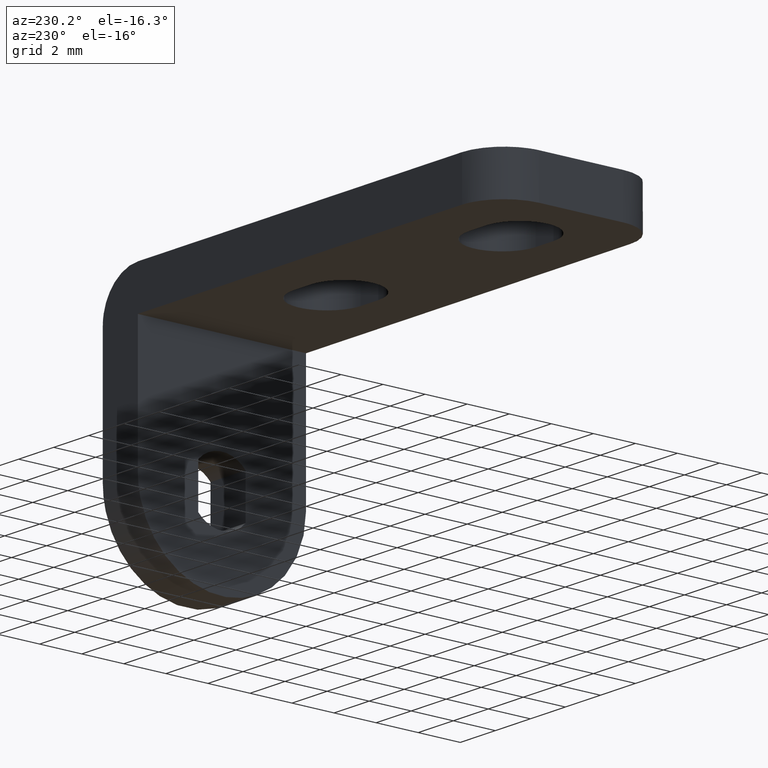
[diagram: clean part render]
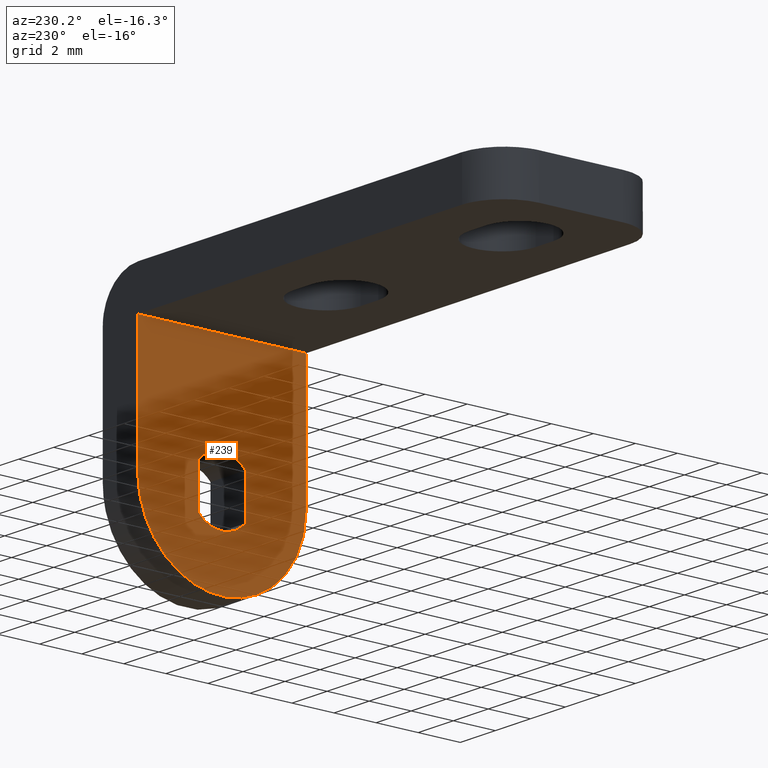
[diagram: same view with one face highlighted and labeled with its STEP entity id]
A machine part, auxiliary view. The second image highlights one B-rep face of the part: STEP entity #239.
In plain terms, the highlighted face is a freeform B-spline surface patch.
Its self-contained STEP definition (entity closure, byte-faithful):
#19=CARTESIAN_POINT('',(-2.0,-1.125000000000000,-1.007211497154396));
#20=VERTEX_POINT('',#19);
#21=CARTESIAN_POINT('',(-2.0,1.125000000000000,-1.007211497154394));
#22=VERTEX_POINT('',#21);
#23=CARTESIAN_POINT('',(-2.0,-1.125000000000000,-1.007211497154396));
#24=CARTESIAN_POINT('',(-1.999999999999995,-1.054458498273913,-1.086028728509245));
#25=CARTESIAN_POINT('',(-2.000000000000009,-0.906571749790443,-1.219810732984655));
#26=CARTESIAN_POINT('',(-1.999999999999995,-0.650104550909330,-1.373032470263705));
#27=CARTESIAN_POINT('',(-2.000000000000002,-0.369092621550394,-1.474997425281579));
#28=CARTESIAN_POINT('',(-2.000000000000016,-0.079654564803783,-1.517097273045653));
#29=CARTESIAN_POINT('',(-1.999999999999993,0.218606015017575,-1.503381004809239));
#30=CARTESIAN_POINT('',(-1.999999999999989,0.477100424217575,-1.441101633173067));
#31=CARTESIAN_POINT('',(-2.000000000000026,0.719860443600865,-1.334507545746368));
#32=CARTESIAN_POINT('',(-1.999999999999986,0.931943242133611,-1.198163352835112));
#33=CARTESIAN_POINT('',(-2.000000000000004,1.063274082685148,-1.076171822266437));
#34=CARTESIAN_POINT('',(-2.0,1.125000000000000,-1.007211497154394));
#35=B_SPLINE_CURVE_WITH_KNOTS('',3,(#23,#24,#25,#26,#27,#28,#29,#30,#31,#32,#33,#34),.UNSPECIFIED.,.F.,.U.,(4,1,1,1,1,1,1,1,1,4),(0.000000021252356,0.317321077084615,0.594980168034325,0.892474654479070,1.209802679016195,1.467612971836682,1.784940209736233,2.003101012342906,2.260931764289991,2.538583380167406),.UNSPECIFIED.);
#36=EDGE_CURVE('',#20,#22,#35,.T.);
#75=CARTESIAN_POINT('',(-2.0,-1.125000000000000,1.007211497154396));
#76=VERTEX_POINT('',#75);
#77=CARTESIAN_POINT('',(-2.0,-1.125000000000000,1.007211497154396));
#78=CARTESIAN_POINT('',(-2.0,-1.125000000000000,-1.007211497154396));
#79=QUASI_UNIFORM_CURVE('',1,(#77,#78),.UNSPECIFIED.,.F.,.U.);
#80=EDGE_CURVE('',#76,#20,#79,.T.);
#112=CARTESIAN_POINT('',(-2.0,1.125000000000000,1.007211497154396));
#113=VERTEX_POINT('',#112);
#114=CARTESIAN_POINT('',(-2.0,1.125000000000000,1.007211497154396));
#115=CARTESIAN_POINT('',(-1.999999999999999,1.054458762197572,1.086028210558191));
#116=CARTESIAN_POINT('',(-1.999999999999998,0.916429453312297,1.210891965597650));
#117=CARTESIAN_POINT('',(-2.000000000000004,0.701812052061926,1.342952749639790));
#118=CARTESIAN_POINT('',(-1.999999999999997,0.494970128216519,1.432155011110402));
#119=CARTESIAN_POINT('',(-2.000000000000004,0.258027295814461,1.495877439069008));
#120=CARTESIAN_POINT('',(-2.000000000000006,0.019755509462781,1.516266014524935));
#121=CARTESIAN_POINT('',(-1.999999999999982,-0.251058283222351,1.496676262277557));
#122=CARTESIAN_POINT('',(-2.000000000000027,-0.502867092721786,1.434257938895680));
#123=CARTESIAN_POINT('',(-1.999999999999975,-0.827046037347030,1.281651665574566));
#124=CARTESIAN_POINT('',(-2.000000000000010,-1.019225973146244,1.125487034870840));
#125=CARTESIAN_POINT('',(-2.0,-1.125000000000000,1.007211497154396));
#126=B_SPLINE_CURVE_WITH_KNOTS('',3,(#114,#115,#116,#117,#118,#119,#120,#121,#122,#123,#124,#125),.UNSPECIFIED.,.F.,.U.,(4,1,1,1,1,1,1,1,1,4),(0.000000021252095,0.317321077084407,0.555313923915336,0.753643760617509,0.991639863852368,1.289119027640193,1.467612971836608,1.804774067958977,2.062601643037822,2.538583380167404),.UNSPECIFIED.);
#127=EDGE_CURVE('',#113,#76,#126,.T.);
#160=CARTESIAN_POINT('',(-2.0,1.125000000000000,-1.007211497154394));
#161=CARTESIAN_POINT('',(-2.0,1.125000000000000,1.007211497154396));
#162=QUASI_UNIFORM_CURVE('',1,(#160,#161),.UNSPECIFIED.,.F.,.U.);
#163=EDGE_CURVE('',#22,#113,#162,.T.);
#175=CARTESIAN_POINT('',(-2.0,-4.399599984494326,6.499508380218263));
#176=CARTESIAN_POINT('',(-2.0,4.399600199071164,6.499508380218263));
#177=CARTESIAN_POINT('',(-2.0,-4.399599984494326,-4.499500648439121));
#178=CARTESIAN_POINT('',(-2.0,4.399600199071164,-4.499500648439121));
#179=B_SPLINE_SURFACE_WITH_KNOTS('',1,1,((#175,#177),(#176,#178)),.UNSPECIFIED.,.F.,.F.,.U.,(2,2),(2,2),(0.0,8.799200183565489),(0.0,10.999009028657380),.UNSPECIFIED.);
#180=CARTESIAN_POINT('',(-2.0,3.999999999999940,0.000000698131700));
#181=VERTEX_POINT('',#180);
#182=CARTESIAN_POINT('',(-2.0,4.0,6.000008000000210));
#183=VERTEX_POINT('',#182);
#184=CARTESIAN_POINT('',(-2.0,3.999999999999940,0.000000698131700));
#185=CARTESIAN_POINT('',(-2.0,4.0,6.000008000000210));
#186=QUASI_UNIFORM_CURVE('',1,(#184,#185),.UNSPECIFIED.,.F.,.U.);
#187=EDGE_CURVE('',#181,#183,#186,.T.);
#188=ORIENTED_EDGE('',*,*,#187,.F.);
#189=CARTESIAN_POINT('',(-2.0,-3.999999999999885,-2.449213E-016));
#190=VERTEX_POINT('',#189);
#191=CARTESIAN_POINT('',(-2.0,-3.999999999999885,-2.449213E-016));
#192=CARTESIAN_POINT('',(-2.000000000000002,-4.000054820273503,-0.294528697669436));
#193=CARTESIAN_POINT('',(-1.999999999999997,-3.940087908877969,-0.834463830602775));
#194=CARTESIAN_POINT('',(-2.000000000000009,-3.720037957986159,-1.514537858893509));
#195=CARTESIAN_POINT('',(-1.999999999999960,-3.464132106644943,-2.019023679253217));
#196=CARTESIAN_POINT('',(-2.000000000000020,-3.168247200904762,-2.461866130244077));
#197=CARTESIAN_POINT('',(-1.999999999999985,-2.836610672779317,-2.836915638123589));
#198=CARTESIAN_POINT('',(-2.000000000000023,-2.422086121509341,-3.196705231388449));
#199=CARTESIAN_POINT('',(-1.999999999999953,-1.944632128753551,-3.515748645137961));
#200=CARTESIAN_POINT('',(-2.000000000000013,-1.428652358590203,-3.750175550014358));
#201=CARTESIAN_POINT('',(-2.000000000000036,-0.926061342890244,-3.899248517612289));
#202=CARTESIAN_POINT('',(-1.999999999999950,-0.426265298816485,-3.990730900704372));
#203=CARTESIAN_POINT('',(-2.000000000000060,0.229964258619734,-4.016954725121442));
#204=CARTESIAN_POINT('',(-1.999999999999969,0.897176979092106,-3.917977598478563));
#205=CARTESIAN_POINT('',(-2.000000000000012,1.520556628081535,-3.714126542087710));
#206=CARTESIAN_POINT('',(-1.999999999999995,1.999136146657041,-3.478726857426481));
#207=CARTESIAN_POINT('',(-2.000000000000001,2.461537878592850,-3.167704515486180));
#208=CARTESIAN_POINT('',(-2.0,2.824120569598528,-2.847093247575191));
#209=CARTESIAN_POINT('',(-2.0,3.160528731872900,-2.466642192713344));
#210=CARTESIAN_POINT('',(-2.000000000000006,3.403905666833889,-2.116528134382790));
#211=CARTESIAN_POINT('',(-1.999999999999965,3.634266829761743,-1.691842397540590));
#212=CARTESIAN_POINT('',(-2.000000000000105,3.815327884560553,-1.243095360035882));
#213=CARTESIAN_POINT('',(-1.999999999999746,3.962764862235379,-0.654487913872275));
#214=CARTESIAN_POINT('',(-2.000000000000370,4.000023397858799,-0.237253504403810));
#215=CARTESIAN_POINT('',(-2.0,3.999999999999940,0.000000698131700));
#216=B_SPLINE_CURVE_WITH_KNOTS('',3,(#191,#192,#193,#194,#195,#196,#197,#198,#199,#200,#201,#202,#203,#204,#205,#206,#207,#208,#209,#210,#211,#212,#213,#214,#215),.UNSPECIFIED.,.F.,.U.,(4,1,1,1,1,1,1,1,1,1,1,1,1,1,1,1,1,1,1,1,1,1,4),(0.000000034913221,0.883572076087649,1.619883735277144,2.135305120002263,2.577092520897409,3.215230919459122,3.632482014088840,4.221516339006417,4.933286803160291,5.325988793622190,5.792318006482378,6.455002020937245,7.289491901418334,7.804907263553440,8.418496800233399,8.884824342451179,9.473876836323283,9.866580385363349,10.406542240729239,10.750155645124350,11.314662507973919,11.854631317665630,12.566391025485240),.UNSPECIFIED.);
#217=EDGE_CURVE('',#190,#181,#216,.T.);
#218=ORIENTED_EDGE('',*,*,#217,.F.);
#219=CARTESIAN_POINT('',(-2.0,-3.999999999999885,6.000008000000210));
#220=VERTEX_POINT('',#219);
#221=CARTESIAN_POINT('',(-2.0,-3.999999999999885,6.000008000000210));
#222=CARTESIAN_POINT('',(-2.0,-3.999999999999885,-2.449213E-016));
#223=QUASI_UNIFORM_CURVE('',1,(#221,#222),.UNSPECIFIED.,.F.,.U.);
#224=EDGE_CURVE('',#220,#190,#223,.T.);
#225=ORIENTED_EDGE('',*,*,#224,.F.);
#226=CARTESIAN_POINT('',(-2.0,4.0,6.000008000000210));
#227=CARTESIAN_POINT('',(-2.0,-3.999999999999885,6.000008000000210));
#228=QUASI_UNIFORM_CURVE('',1,(#226,#227),.UNSPECIFIED.,.F.,.U.);
#229=EDGE_CURVE('',#183,#220,#228,.T.);
#230=ORIENTED_EDGE('',*,*,#229,.F.);
#231=EDGE_LOOP('',(#188,#218,#225,#230));
#232=FACE_OUTER_BOUND('',#231,.T.);
#233=ORIENTED_EDGE('',*,*,#163,.T.);
#234=ORIENTED_EDGE('',*,*,#127,.T.);
#235=ORIENTED_EDGE('',*,*,#80,.T.);
#236=ORIENTED_EDGE('',*,*,#36,.T.);
#237=EDGE_LOOP('',(#233,#234,#235,#236));
#238=FACE_BOUND('',#237,.T.);
#239=ADVANCED_FACE('',(#232,#238),#179,.T.);